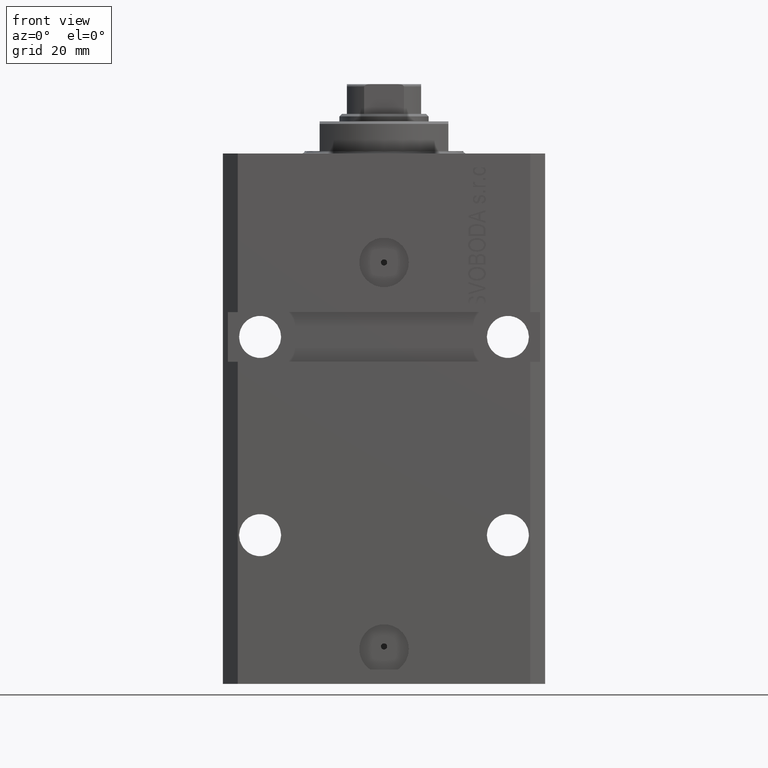
[diagram: clean part render]
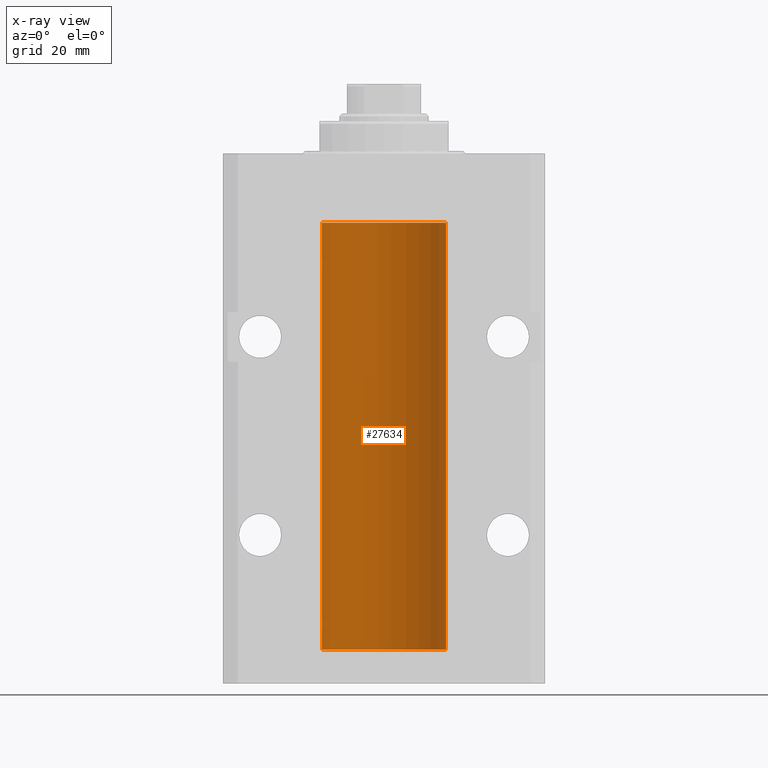
[diagram: x-ray — body ghosted, one internal face saturated and labeled with its STEP entity id]
A machine part, front view, then the same camera in x-ray: the body is ghosted and one INTERNAL B-rep face — a face not visible from any outside direction — is saturated and labeled: STEP entity #27634.
In plain terms, the highlighted cylindrical surface (partial cylindrical patch) has radius 12.5 mm, axis along (0, 0, 1).
Its self-contained STEP definition (entity closure, byte-faithful):
#99 = CARTESIAN_POINT ( 'NONE',  ( -12.48809959379011403, 0.5462151254764975317, -22.31461370481611795 ) ) ;
#660 = AXIS2_PLACEMENT_3D ( 'NONE', #2903, #13270, #46535 ) ;
#800 = CARTESIAN_POINT ( 'NONE',  ( -12.50000000000000000, -2.089494013101375120E-17, -21.37499999999999645 ) ) ;
#1191 = LINE ( 'NONE', #15919, #45183 ) ;
#1705 = CARTESIAN_POINT ( 'NONE',  ( -12.50000000000000000, -1.522152011595579853E-14, -94.37500000000000000 ) ) ;
#2032 = CARTESIAN_POINT ( 'NONE',  ( -12.50000000000017941, 3.883381646606358354E-13, -22.62500000000358824 ) ) ;
#2671 = CARTESIAN_POINT ( 'NONE',  ( -12.50000000000000000, 1.530808498934191521E-15, -100.0999999999999943 ) ) ;
#2903 = CARTESIAN_POINT ( 'NONE',  ( 0.000000000000000000, 0.000000000000000000, -100.0999999999999943 ) ) ;
#3495 = ORIENTED_EDGE ( 'NONE', *, *, #23815, .T. ) ;
#4175 = CARTESIAN_POINT ( 'NONE',  ( -12.48436376893640443, 0.6250290278979917513, -22.08132082824473486 ) ) ;
#4545 = CARTESIAN_POINT ( 'NONE',  ( 12.50000000000000000, 0.000000000000000000, -13.99999999999999822 ) ) ;
#5140 = CARTESIAN_POINT ( 'NONE',  ( 12.50000000000000000, 0.000000000000000000, -100.0999999999999943 ) ) ;
#5176 = EDGE_CURVE ( 'NONE', #26351, #17761, #1191, .T. ) ;
#5428 = CARTESIAN_POINT ( 'NONE',  ( -12.49625855304194033, 0.3150454781037993479, -94.45402800297488000 ) ) ;
#5899 = CARTESIAN_POINT ( 'NONE',  ( -12.49999999999999112, 0.1631761135151224562, -95.62499999999980105 ) ) ;
#6212 = CARTESIAN_POINT ( 'NONE',  ( -12.50000000000000000, 1.530808498934191521E-15, -100.0999999999999943 ) ) ;
#6912 = VERTEX_POINT ( 'NONE', #28552 ) ;
#7411 = CARTESIAN_POINT ( 'NONE',  ( 0.000000000000000000, 0.000000000000000000, -100.0999999999999943 ) ) ;
#7979 = ORIENTED_EDGE ( 'NONE', *, *, #21024, .T. ) ;
#9283 = CARTESIAN_POINT ( 'NONE',  ( -12.50000000000017941, 3.883381774819353300E-13, -95.62500000000359535 ) ) ;
#9712 = LINE ( 'NONE', #5140, #13621 ) ;
#12202 = ORIENTED_EDGE ( 'NONE', *, *, #5176, .F. ) ;
#13063 = EDGE_CURVE ( 'NONE', #36247, #28624, #9712, .T. ) ;
#13162 = AXIS2_PLACEMENT_3D ( 'NONE', #36799, #47417, #44018 ) ;
#13270 = DIRECTION ( 'NONE',  ( 0.000000000000000000, 0.000000000000000000, 1.000000000000000000 ) ) ;
#13534 = DIRECTION ( 'NONE',  ( 1.000000000000000000, 0.000000000000000000, 0.000000000000000000 ) ) ;
#13621 = VECTOR ( 'NONE', #35043, 1000.000000000000000 ) ;
#13765 = LINE ( 'NONE', #2671, #19017 ) ;
#14404 = EDGE_CURVE ( 'NONE', #6912, #29562, #13765, .T. ) ;
#14629 = VECTOR ( 'NONE', #35152, 1000.000000000000000 ) ;
#15522 = CARTESIAN_POINT ( 'NONE',  ( -12.50000000000017941, 3.883381646606358354E-13, -22.62500000000358824 ) ) ;
#15919 = CARTESIAN_POINT ( 'NONE',  ( -12.50000000000000000, 1.530808498934191521E-15, -100.0999999999999943 ) ) ;
#17400 = CARTESIAN_POINT ( 'NONE',  ( -12.50000000000000000, 1.530808498934191521E-15, -100.0999999999999943 ) ) ;
#17761 = VERTEX_POINT ( 'NONE', #42956 ) ;
#18436 = CARTESIAN_POINT ( 'NONE',  ( -12.48436813453758454, 0.6249418250771192618, -21.83668996798922635 ) ) ;
#19017 = VECTOR ( 'NONE', #32588, 1000.000000000000000 ) ;
#19878 = CARTESIAN_POINT ( 'NONE',  ( -12.50000000000000000, 1.530808498934191521E-15, -13.99999999999999822 ) ) ;
#20446 = LINE ( 'NONE', #6212, #14629 ) ;
#21024 = EDGE_CURVE ( 'NONE', #6912, #46536, #22772, .T. ) ;
#21247 = ORIENTED_EDGE ( 'NONE', *, *, #45387, .F. ) ;
#21526 = VERTEX_POINT ( 'NONE', #1705 ) ;
#22772 = B_SPLINE_CURVE_WITH_KNOTS ( 'NONE', 3,
 ( #800, #40598, #29305, #25449, #29761, #25674, #18436, #4175, #37458, #99, #33856, #43985, #33382, #15522 ),
 .UNSPECIFIED., .F., .F.,
 ( 4, 2, 2, 2, 2, 2, 4 ),
 ( 2.030551168097110502E-20, 0.0002442924852390969078, 0.0004885849704781938157, 0.0009771699409563880650, 0.001221462426195485135, 0.001465754911434582423, 0.001954339881912776130 ),
 .UNSPECIFIED. ) ;
#23290 = CARTESIAN_POINT ( 'NONE',  ( -12.50000000000000000, -1.522152011595579853E-14, -94.37500000000000000 ) ) ;
#23815 = EDGE_CURVE ( 'NONE', #28624, #29562, #43223, .T. ) ;
#25449 = CARTESIAN_POINT ( 'NONE',  ( -12.49625855304193678, 0.3150454781038042329, -21.45402800297484802 ) ) ;
#25674 = CARTESIAN_POINT ( 'NONE',  ( -12.48810268015257563, 0.5573155909661349217, -21.67347410093867666 ) ) ;
#26351 = VERTEX_POINT ( 'NONE', #17400 ) ;
#26731 = CARTESIAN_POINT ( 'NONE',  ( 12.50000000000000000, 0.000000000000000000, -100.0999999999999943 ) ) ;
#27628 = CARTESIAN_POINT ( 'NONE',  ( -12.49011732893843529, 0.5003763274120199833, -95.38348111289285214 ) ) ;
#27634 = ADVANCED_FACE ( 'NONE', ( #46564 ), #46333, .F. ) ;
#28552 = CARTESIAN_POINT ( 'NONE',  ( -12.50000000000000000, -2.089494013101375120E-17, -21.37499999999999645 ) ) ;
#28624 = VERTEX_POINT ( 'NONE', #4545 ) ;
#29305 = CARTESIAN_POINT ( 'NONE',  ( -12.49915784441386890, 0.1636601911727947889, -21.39126818989430490 ) ) ;
#29357 = AXIS2_PLACEMENT_3D ( 'NONE', #7411, #32367, #13534 ) ;
#29562 = VERTEX_POINT ( 'NONE', #19878 ) ;
#29761 = CARTESIAN_POINT ( 'NONE',  ( -12.49422197749724006, 0.3843754434364375916, -21.50047099568095277 ) ) ;
#30645 = DIRECTION ( 'NONE',  ( -0.000000000000000000, -0.000000000000000000, 1.000000000000000000 ) ) ;
#30680 = ORIENTED_EDGE ( 'NONE', *, *, #43438, .F. ) ;
#30771 = CARTESIAN_POINT ( 'NONE',  ( -12.48436813453758631, 0.6249418250771134886, -94.83668996798924411 ) ) ;
#31487 = CARTESIAN_POINT ( 'NONE',  ( -12.48810268015257741, 0.5573155909661239304, -94.67347410093871929 ) ) ;
#31731 = CARTESIAN_POINT ( 'NONE',  ( -12.48809959379011403, 0.5462151254764922026, -95.31461370481613926 ) ) ;
#32275 = CIRCLE ( 'NONE', #660, 12.50000000000000000 ) ;
#32367 = DIRECTION ( 'NONE',  ( -0.000000000000000000, -0.000000000000000000, 1.000000000000000000 ) ) ;
#32588 = DIRECTION ( 'NONE',  ( -0.000000000000000000, -0.000000000000000000, 1.000000000000000000 ) ) ;
#33382 = CARTESIAN_POINT ( 'NONE',  ( -12.49999999999999289, 0.1631761135151241215, -22.62499999999984013 ) ) ;
#33856 = CARTESIAN_POINT ( 'NONE',  ( -12.49011732893843529, 0.5003763274120274218, -22.38348111289287701 ) ) ;
#34380 = CARTESIAN_POINT ( 'NONE',  ( -12.49422197749723829, 0.3843754434364257122, -94.50047099568094211 ) ) ;
#35043 = DIRECTION ( 'NONE',  ( -0.000000000000000000, -0.000000000000000000, 1.000000000000000000 ) ) ;
#35044 = EDGE_LOOP ( 'NONE', ( #12202, #30680, #43200, #3495, #37238, #7979, #21247, #45314 ) ) ;
#35088 = CARTESIAN_POINT ( 'NONE',  ( -12.49631005746706514, 0.3253680783018457756, -95.55856740465388555 ) ) ;
#35152 = DIRECTION ( 'NONE',  ( -0.000000000000000000, -0.000000000000000000, 1.000000000000000000 ) ) ;
#36247 = VERTEX_POINT ( 'NONE', #26731 ) ;
#36799 = CARTESIAN_POINT ( 'NONE',  ( 0.000000000000000000, 0.000000000000000000, -13.99999999999999822 ) ) ;
#37238 = ORIENTED_EDGE ( 'NONE', *, *, #14404, .F. ) ;
#37458 = CARTESIAN_POINT ( 'NONE',  ( -12.48520330846397819, 0.6088355886774127201, -22.16325431852561323 ) ) ;
#37981 = CARTESIAN_POINT ( 'NONE',  ( -12.49915784441387068, 0.1636601911727894876, -94.39126818989429069 ) ) ;
#38466 = CARTESIAN_POINT ( 'NONE',  ( -12.48520330846397997, 0.6088355886774070580, -95.16325431852561678 ) ) ;
#40598 = CARTESIAN_POINT ( 'NONE',  ( -12.50000000000000000, 0.08260426088729219685, -21.37500000000000000 ) ) ;
#41810 = EDGE_CURVE ( 'NONE', #21526, #17761, #41855, .T. ) ;
#41855 = B_SPLINE_CURVE_WITH_KNOTS ( 'NONE', 3,
 ( #23290, #46407, #37981, #5428, #34380, #31487, #30771, #42313, #38466, #31731, #27628, #35088, #5899, #9283 ),
 .UNSPECIFIED., .F., .F.,
 ( 4, 2, 2, 2, 2, 2, 4 ),
 ( 3.486178718436696769E-18, 0.0002442924852390829216, 0.0004885849704781623738, 0.0009771699409563507684, 0.001221462426195465403, 0.001465754911434580254, 0.001954339881912780900 ),
 .UNSPECIFIED. ) ;
#42313 = CARTESIAN_POINT ( 'NONE',  ( -12.48436376893640620, 0.6250290278979871994, -95.08132082824478459 ) ) ;
#42956 = CARTESIAN_POINT ( 'NONE',  ( -12.50000000000017941, 3.883381774819353300E-13, -95.62500000000359535 ) ) ;
#43200 = ORIENTED_EDGE ( 'NONE', *, *, #13063, .T. ) ;
#43223 = CIRCLE ( 'NONE', #13162, 12.50000000000000000 ) ;
#43438 = EDGE_CURVE ( 'NONE', #36247, #26351, #32275, .T. ) ;
#43985 = CARTESIAN_POINT ( 'NONE',  ( -12.49631005746706336, 0.3253680783018528255, -22.55856740465392463 ) ) ;
#44018 = DIRECTION ( 'NONE',  ( 1.000000000000000000, 0.000000000000000000, 0.000000000000000000 ) ) ;
#45183 = VECTOR ( 'NONE', #30645, 1000.000000000000000 ) ;
#45314 = ORIENTED_EDGE ( 'NONE', *, *, #41810, .T. ) ;
#45387 = EDGE_CURVE ( 'NONE', #21526, #46536, #20446, .T. ) ;
#46333 = CYLINDRICAL_SURFACE ( 'NONE', #29357, 12.50000000000000000 ) ;
#46407 = CARTESIAN_POINT ( 'NONE',  ( -12.50000000000000000, 0.08260426088727994276, -94.37499999999998579 ) ) ;
#46535 = DIRECTION ( 'NONE',  ( 1.000000000000000000, 0.000000000000000000, 0.000000000000000000 ) ) ;
#46536 = VERTEX_POINT ( 'NONE', #2032 ) ;
#46564 = FACE_OUTER_BOUND ( 'NONE', #35044, .T. ) ;
#47417 = DIRECTION ( 'NONE',  ( 0.000000000000000000, 0.000000000000000000, 1.000000000000000000 ) ) ;